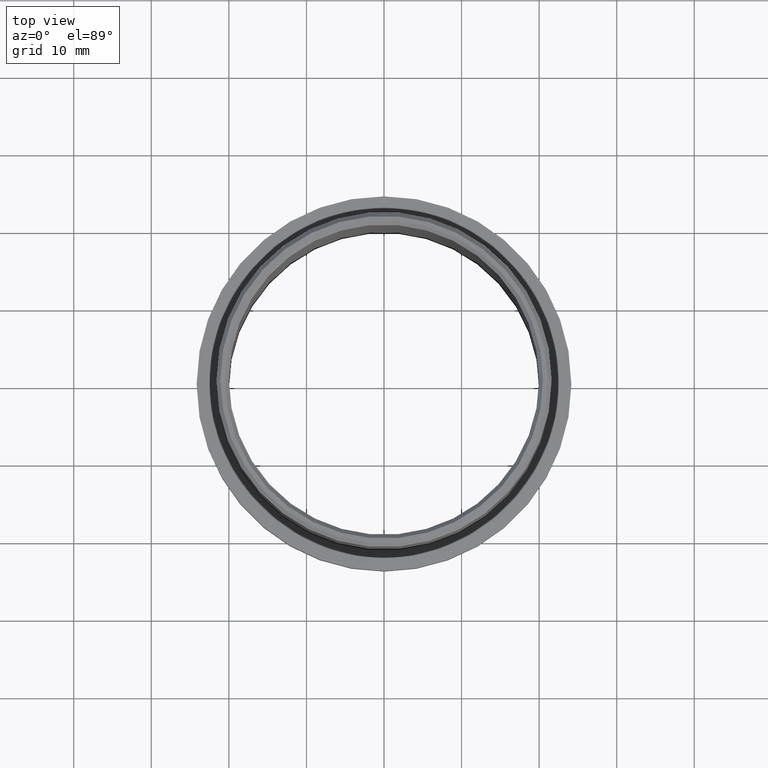
[diagram: clean part render]
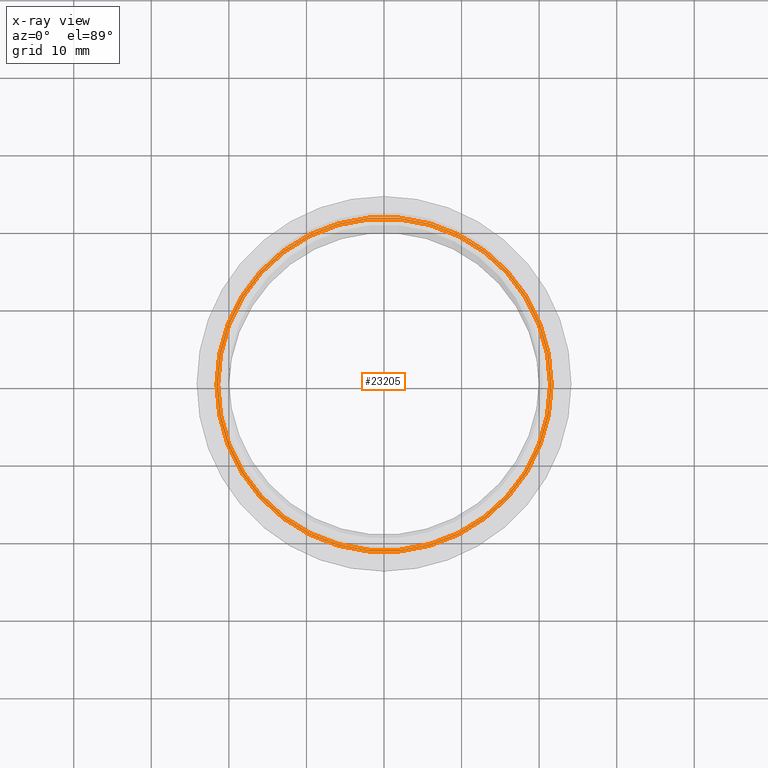
[diagram: x-ray — body ghosted, one internal face saturated and labeled with its STEP entity id]
A machine part, top view, then the same camera in x-ray: the body is ghosted and one INTERNAL B-rep face — a face not visible from any outside direction — is saturated and labeled: STEP entity #23205.
In plain terms, the highlighted planar face has unit normal (0, 0, -1).
Its self-contained STEP definition (entity closure, byte-faithful):
#1138 = AXIS2_PLACEMENT_3D ( 'NONE', #1401, #14092, #19636 ) ;
#1401 = CARTESIAN_POINT ( 'NONE',  ( 0.0000000000000000000, 0.0000000000000000000, -5.500000000000000000 ) ) ;
#2925 = CARTESIAN_POINT ( 'NONE',  ( 0.0000000000000000000, 0.0000000000000000000, -5.500000000000000000 ) ) ;
#3872 = VERTEX_POINT ( 'NONE', #19898 ) ;
#4187 = VERTEX_POINT ( 'NONE', #12260 ) ;
#4746 = CIRCLE ( 'NONE', #12772, 21.39999999999999900 ) ;
#5596 = DIRECTION ( 'NONE',  ( 0.0000000000000000000, 0.0000000000000000000, -1.000000000000000000 ) ) ;
#6659 = EDGE_CURVE ( 'NONE', #3872, #13891, #20470, .T. ) ;
#7285 = CARTESIAN_POINT ( 'NONE',  ( 0.0000000000000000000, 0.0000000000000000000, -5.500000000000000000 ) ) ;
#10418 = EDGE_CURVE ( 'NONE', #13891, #3872, #11986, .T. ) ;
#11986 = CIRCLE ( 'NONE', #21159, 21.59999999999999800 ) ;
#12260 = CARTESIAN_POINT ( 'NONE',  ( -21.39999999999999900, 0.0000000000000000000, -5.500000000000000000 ) ) ;
#12733 = PLANE ( 'NONE',  #22259 ) ;
#12772 = AXIS2_PLACEMENT_3D ( 'NONE', #13889, #17431, #22935 ) ;
#13889 = CARTESIAN_POINT ( 'NONE',  ( 0.0000000000000000000, 0.0000000000000000000, -5.500000000000000000 ) ) ;
#13891 = VERTEX_POINT ( 'NONE', #22813 ) ;
#14092 = DIRECTION ( 'NONE',  ( -0.0000000000000000000, -0.0000000000000000000, 1.000000000000000000 ) ) ;
#15677 = EDGE_CURVE ( 'NONE', #17680, #4187, #20926, .T. ) ;
#16355 = CARTESIAN_POINT ( 'NONE',  ( 0.0000000000000000000, 0.0000000000000000000, -5.500000000000000000 ) ) ;
#16940 = FACE_BOUND ( 'NONE', #17701, .T. ) ;
#17293 = ORIENTED_EDGE ( 'NONE', *, *, #10418, .T. ) ;
#17431 = DIRECTION ( 'NONE',  ( -0.0000000000000000000, -0.0000000000000000000, 1.000000000000000000 ) ) ;
#17680 = VERTEX_POINT ( 'NONE', #21277 ) ;
#17701 = EDGE_LOOP ( 'NONE', ( #23127, #21368 ) ) ;
#18841 = EDGE_LOOP ( 'NONE', ( #23525, #17293 ) ) ;
#19265 = FACE_OUTER_BOUND ( 'NONE', #18841, .T. ) ;
#19420 = DIRECTION ( 'NONE',  ( 1.000000000000000000, 0.0000000000000000000, 0.0000000000000000000 ) ) ;
#19636 = DIRECTION ( 'NONE',  ( 1.000000000000000000, 0.0000000000000000000, 0.0000000000000000000 ) ) ;
#19872 = DIRECTION ( 'NONE',  ( 1.000000000000000000, 0.0000000000000000000, 0.0000000000000000000 ) ) ;
#19898 = CARTESIAN_POINT ( 'NONE',  ( -21.59999999999999800, 0.0000000000000000000, -5.500000000000000000 ) ) ;
#19957 = DIRECTION ( 'NONE',  ( 1.000000000000000000, 0.0000000000000000000, 0.0000000000000000000 ) ) ;
#20470 = CIRCLE ( 'NONE', #1138, 21.59999999999999800 ) ;
#20864 = EDGE_CURVE ( 'NONE', #4187, #17680, #4746, .T. ) ;
#20926 = CIRCLE ( 'NONE', #21949, 21.39999999999999900 ) ;
#21159 = AXIS2_PLACEMENT_3D ( 'NONE', #2925, #22994, #19420 ) ;
#21277 = CARTESIAN_POINT ( 'NONE',  ( 21.39999999999999900, -2.620744150175335900E-015, -5.500000000000000000 ) ) ;
#21368 = ORIENTED_EDGE ( 'NONE', *, *, #15677, .F. ) ;
#21849 = DIRECTION ( 'NONE',  ( -0.0000000000000000000, -0.0000000000000000000, 1.000000000000000000 ) ) ;
#21949 = AXIS2_PLACEMENT_3D ( 'NONE', #16355, #21849, #19872 ) ;
#22259 = AXIS2_PLACEMENT_3D ( 'NONE', #7285, #5596, #19957 ) ;
#22813 = CARTESIAN_POINT ( 'NONE',  ( 21.59999999999999800, -2.645237086158282600E-015, -5.500000000000000000 ) ) ;
#22935 = DIRECTION ( 'NONE',  ( 1.000000000000000000, 0.0000000000000000000, 0.0000000000000000000 ) ) ;
#22994 = DIRECTION ( 'NONE',  ( -0.0000000000000000000, -0.0000000000000000000, 1.000000000000000000 ) ) ;
#23127 = ORIENTED_EDGE ( 'NONE', *, *, #20864, .F. ) ;
#23205 = ADVANCED_FACE ( 'NONE', ( #16940, #19265 ), #12733, .F. ) ;
#23525 = ORIENTED_EDGE ( 'NONE', *, *, #6659, .T. ) ;